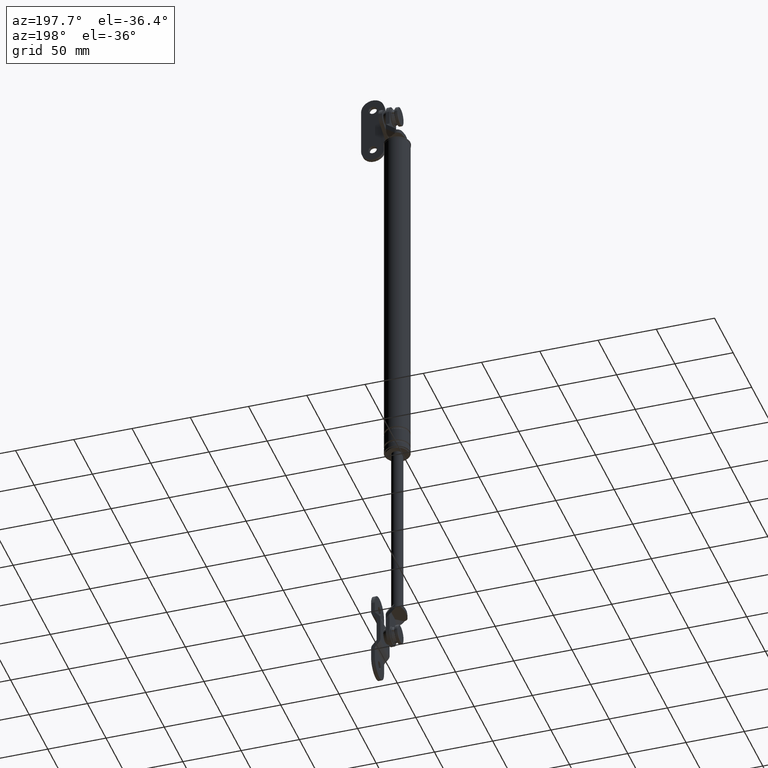
[diagram: clean part render]
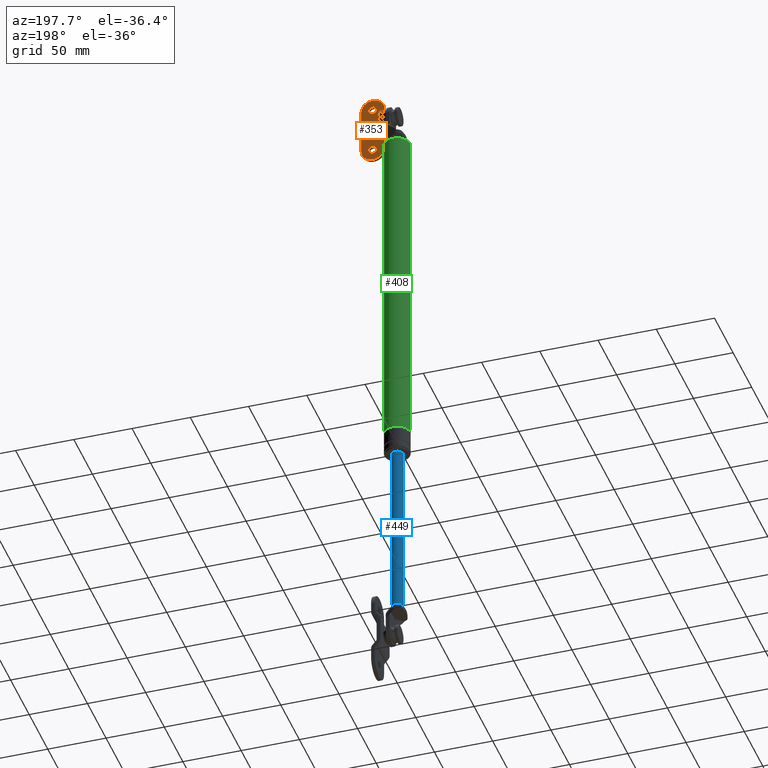
[diagram: same view with three faces highlighted in distinct colors, each labeled with its STEP entity id]
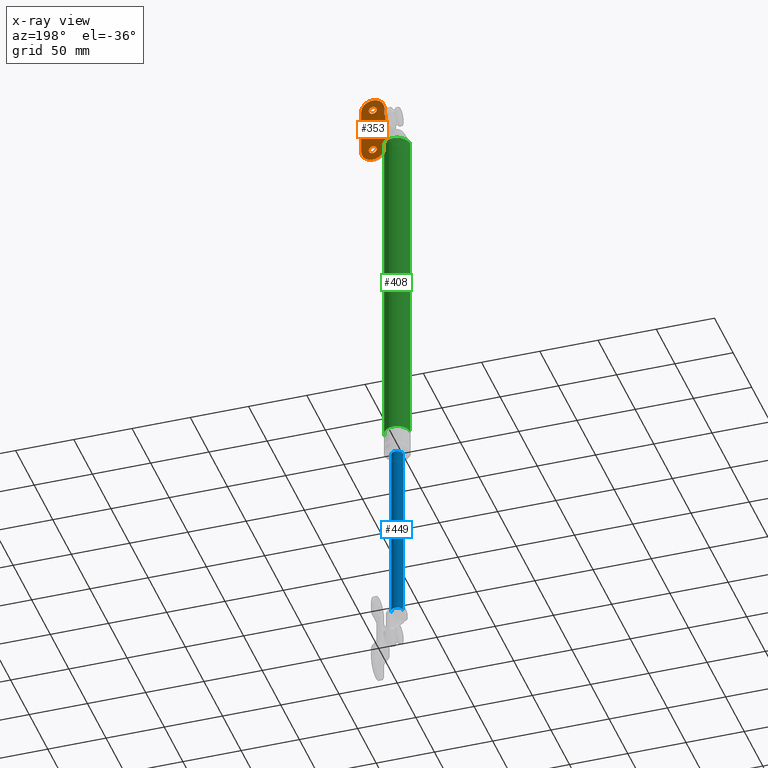
[diagram: x-ray of the same camera — body ghosted, the three highlighted faces saturated]
A machine part, auxiliary view with three faces highlighted in distinct colors.
The next image is the same camera in x-ray (body ghosted, the three faces saturated) — at least one of them is partly hidden behind the body in this view.
Their STEP definitions:

[orange] entity #353 — the highlighted planar face has unit normal (0, -1, 0).
#353=ADVANCED_FACE('',(#1215,#1216,#1217),#1214,.F.);
#1214=PLANE('',#2616);
#1215=FACE_OUTER_BOUND('',#2617,.T.);
#1216=FACE_BOUND('',#2618,.T.);
#1217=FACE_BOUND('',#2619,.T.);
#2613=CARTESIAN_POINT('',(6.63047447386E+001,-2.28800000000E+001,1.87387479342E+002));
#2614=DIRECTION('',(0.00000000000E+000,0.00000000000E+000,1.00000000000E+000));
#2615=DIRECTION('',(1.00000000000E+000,0.00000000000E+000,0.00000000000E+000));
#2616=AXIS2_PLACEMENT_3D('',#2613,#2614,#2615);
#2617=EDGE_LOOP('',(#3814,#3815,#3816,#3817,#3818,#3819,#3820,#3821,#3822,#3823));
#2618=EDGE_LOOP('',(#3824,#3825));
#2619=EDGE_LOOP('',(#3826,#3827));
#3814=ORIENTED_EDGE('',*,*,#4493,.F.);
#3815=ORIENTED_EDGE('',*,*,#4494,.T.);
#3816=ORIENTED_EDGE('',*,*,#4495,.F.);
#3817=ORIENTED_EDGE('',*,*,#4496,.T.);
#3818=ORIENTED_EDGE('',*,*,#4497,.T.);
#3819=ORIENTED_EDGE('',*,*,#4498,.T.);
#3820=ORIENTED_EDGE('',*,*,#4474,.T.);
#3821=ORIENTED_EDGE('',*,*,#4478,.T.);
#3822=ORIENTED_EDGE('',*,*,#4499,.F.);
#3823=ORIENTED_EDGE('',*,*,#4500,.T.);
#3824=ORIENTED_EDGE('',*,*,#4501,.F.);
#3825=ORIENTED_EDGE('',*,*,#4502,.F.);
#3826=ORIENTED_EDGE('',*,*,#4503,.F.);
#3827=ORIENTED_EDGE('',*,*,#4504,.F.);
#4474=EDGE_CURVE('',#5969,#5970,#5971,.T.);
#4478=EDGE_CURVE('',#5970,#5997,#5998,.T.);
#4493=EDGE_CURVE('',#5929,#5949,#6100,.T.);
#4494=EDGE_CURVE('',#5929,#6106,#6107,.T.);
#4495=EDGE_CURVE('',#6113,#6106,#6114,.T.);
#4496=EDGE_CURVE('',#6113,#6120,#6121,.T.);
#4497=EDGE_CURVE('',#6120,#6127,#6128,.T.);
#4498=EDGE_CURVE('',#6127,#5969,#6134,.T.);
#4499=EDGE_CURVE('',#6140,#5997,#6141,.T.);
#4500=EDGE_CURVE('',#6140,#5949,#6147,.T.);
#4501=EDGE_CURVE('',#6153,#6154,#6155,.T.);
#4502=EDGE_CURVE('',#6154,#6153,#6161,.T.);
#4503=EDGE_CURVE('',#6167,#6168,#6169,.T.);
#4504=EDGE_CURVE('',#6168,#6167,#6175,.T.);
#5929=VERTEX_POINT('',#8329);
#5949=VERTEX_POINT('',#8340);
#5969=VERTEX_POINT('',#8351);
#5970=VERTEX_POINT('',#8352);
#5971=CIRCLE('',#8356,1.00000000000E+001);
#5997=VERTEX_POINT('',#8369);
#5998=LINE('',#8370,#8371);
#6100=LINE('',#8434,#8435);
#6106=VERTEX_POINT('',#8437);
#6107=LINE('',#8438,#8439);
#6113=VERTEX_POINT('',#8441);
#6114=CIRCLE('',#8445,5.00000000000E-001);
#6120=VERTEX_POINT('',#8446);
#6121=LINE('',#8447,#8448);
#6127=VERTEX_POINT('',#8450);
#6128=CIRCLE('',#8454,1.00000000000E+001);
#6134=LINE('',#8455,#8456);
#6140=VERTEX_POINT('',#8458);
#6141=CIRCLE('',#8462,5.00000000000E-001);
#6147=LINE('',#8463,#8464);
#6153=VERTEX_POINT('',#8466);
#6154=VERTEX_POINT('',#8467);
#6155=CIRCLE('',#8471,3.50000000000E+000);
#6161=CIRCLE('',#8475,3.50000000000E+000);
#6167=VERTEX_POINT('',#8476);
#6168=VERTEX_POINT('',#8477);
#6169=CIRCLE('',#8481,3.50000000000E+000);
#6175=CIRCLE('',#8485,3.50000000000E+000);
#8329=CARTESIAN_POINT('',(1.15304744739E+002,0.00000000000E+000,1.87387479342E+002));
#8340=CARTESIAN_POINT('',(8.93047447386E+001,0.00000000000E+000,1.87387479342E+002));
#8351=CARTESIAN_POINT('',(8.23047447386E+001,-2.08000000000E+001,1.87387479342E+002));
#8352=CARTESIAN_POINT('',(8.23047447386E+001,-8.00000000000E-001,1.87387479342E+002));
#8353=CARTESIAN_POINT('',(8.23047447386E+001,-1.08000000000E+001,1.87387479342E+002));
#8354=DIRECTION('',(0.00000000000E+000,0.00000000000E+000,-1.00000000000E+000));
#8355=DIRECTION('',(1.83690953073E-016,1.00000000000E+000,0.00000000000E+000));
#8356=AXIS2_PLACEMENT_3D('',#8353,#8354,#8355);
#8369=CARTESIAN_POINT('',(8.88047447386E+001,-8.00000000000E-001,1.87387479342E+002));
#8370=CARTESIAN_POINT('',(8.23047447386E+001,-8.00000000000E-001,1.87387479342E+002));
#8371=VECTOR('',#8372,6.50000000000E+000);
#8372=DIRECTION('',(1.00000000000E+000,0.00000000000E+000,0.00000000000E+000));
#8434=CARTESIAN_POINT('',(1.15304744739E+002,4.26325641456E-014,1.87387479342E+002));
#8435=VECTOR('',#8436,2.60000000000E+001);
#8436=DIRECTION('',(-1.00000000000E+000,0.00000000000E+000,0.00000000000E+000));
#8437=CARTESIAN_POINT('',(1.15304744739E+002,-3.00000000000E-001,1.87387479342E+002));
#8438=CARTESIAN_POINT('',(1.15304744739E+002,0.00000000000E+000,1.87387479342E+002));
#8439=VECTOR('',#8440,3.00000000000E-001);
#8440=DIRECTION('',(0.00000000000E+000,-1.00000000000E+000,0.00000000000E+000));
#8441=CARTESIAN_POINT('',(1.15804744739E+002,-8.00000000000E-001,1.87387479342E+002));
#8442=CARTESIAN_POINT('',(1.15804744739E+002,-3.00000000000E-001,1.87387479342E+002));
#8443=DIRECTION('',(0.00000000000E+000,0.00000000000E+000,-1.00000000000E+000));
#8444=DIRECTION('',(-1.00000000000E+000,-0.00000000000E+000,-0.00000000000E+000));
#8445=AXIS2_PLACEMENT_3D('',#8442,#8443,#8444);
#8446=CARTESIAN_POINT('',(1.22304744739E+002,-8.00000000000E-001,1.87387479342E+002));
#8447=CARTESIAN_POINT('',(1.15804744739E+002,-8.00000000000E-001,1.87387479342E+002));
#8448=VECTOR('',#8449,6.50000000000E+000);
#8449=DIRECTION('',(1.00000000000E+000,0.00000000000E+000,0.00000000000E+000));
#8450=CARTESIAN_POINT('',(1.22304744739E+002,-2.08000000000E+001,1.87387479342E+002));
#8451=CARTESIAN_POINT('',(1.22304744739E+002,-1.08000000000E+001,1.87387479342E+002));
#8452=DIRECTION('',(0.00000000000E+000,0.00000000000E+000,-1.00000000000E+000));
#8453=DIRECTION('',(-1.00000000000E+000,-0.00000000000E+000,-0.00000000000E+000));
#8454=AXIS2_PLACEMENT_3D('',#8451,#8452,#8453);
#8455=CARTESIAN_POINT('',(1.22304744739E+002,-2.08000000000E+001,1.87387479342E+002));
#8456=VECTOR('',#8457,4.00000000000E+001);
#8457=DIRECTION('',(-1.00000000000E+000,2.22044604925E-015,0.00000000000E+000));
#8458=CARTESIAN_POINT('',(8.93047447386E+001,-3.00000000000E-001,1.87387479342E+002));
#8459=CARTESIAN_POINT('',(8.88047447386E+001,-3.00000000000E-001,1.87387479342E+002));
#8460=DIRECTION('',(0.00000000000E+000,0.00000000000E+000,-1.00000000000E+000));
#8461=DIRECTION('',(-1.00000000000E+000,-0.00000000000E+000,-0.00000000000E+000));
#8462=AXIS2_PLACEMENT_3D('',#8459,#8460,#8461);
#8463=CARTESIAN_POINT('',(8.93047447386E+001,-3.00000000000E-001,1.87387479342E+002));
#8464=VECTOR('',#8465,3.00000000000E-001);
#8465=DIRECTION('',(0.00000000000E+000,1.00000000000E+000,0.00000000000E+000));
#8466=CARTESIAN_POINT('',(7.88047447386E+001,-1.08000000000E+001,1.87387479342E+002));
#8467=CARTESIAN_POINT('',(8.58047447386E+001,-1.08000000000E+001,1.87387479342E+002));
#8468=CARTESIAN_POINT('',(8.23047447386E+001,-1.08000000000E+001,1.87387479342E+002));
#8469=DIRECTION('',(0.00000000000E+000,-0.00000000000E+000,-1.00000000000E+000));
#8470=DIRECTION('',(1.00000000000E+000,-1.22460635382E-016,0.00000000000E+000));
#8471=AXIS2_PLACEMENT_3D('',#8468,#8469,#8470);
#8472=CARTESIAN_POINT('',(8.23047447386E+001,-1.08000000000E+001,1.87387479342E+002));
#8473=DIRECTION('',(0.00000000000E+000,-0.00000000000E+000,-1.00000000000E+000));
#8474=DIRECTION('',(1.00000000000E+000,-1.22460635382E-016,0.00000000000E+000));
#8475=AXIS2_PLACEMENT_3D('',#8472,#8473,#8474);
#8476=CARTESIAN_POINT('',(1.18804744739E+002,-1.08000000000E+001,1.87387479342E+002));
#8477=CARTESIAN_POINT('',(1.25804744739E+002,-1.08000000000E+001,1.87387479342E+002));
#8478=CARTESIAN_POINT('',(1.22304744739E+002,-1.08000000000E+001,1.87387479342E+002));
#8479=DIRECTION('',(0.00000000000E+000,-0.00000000000E+000,-1.00000000000E+000));
#8480=DIRECTION('',(1.00000000000E+000,-1.22460635382E-016,0.00000000000E+000));
#8481=AXIS2_PLACEMENT_3D('',#8478,#8479,#8480);
#8482=CARTESIAN_POINT('',(1.22304744739E+002,-1.08000000000E+001,1.87387479342E+002));
#8483=DIRECTION('',(0.00000000000E+000,-0.00000000000E+000,-1.00000000000E+000));
#8484=DIRECTION('',(1.00000000000E+000,-1.22460635382E-016,0.00000000000E+000));
#8485=AXIS2_PLACEMENT_3D('',#8482,#8483,#8484);

[blue] entity #449 — the highlighted cylindrical surface (edge-blend (fillet) strip) has radius 5 mm, axis along (0, 0, 1).
#449=ADVANCED_FACE('',(#2186),#2185,.T.);
#2185=CYLINDRICAL_SURFACE('',#3417,5.00000002618E+000);
#2186=FACE_OUTER_BOUND('',#3418,.T.);
#3414=CARTESIAN_POINT('',(0.00000000000E+000,-2.61800128243E-008,0.00000000000E+000));
#3415=DIRECTION('',(-0.00000000000E+000,-0.00000000000E+000,1.00000000000E+000));
#3416=DIRECTION('',(1.00000000000E+000,0.00000000000E+000,0.00000000000E+000));
#3417=AXIS2_PLACEMENT_3D('',#3414,#3415,#3416);
#3418=EDGE_LOOP('',(#4276,#4277,#4278,#4279,#4280));
#4276=ORIENTED_EDGE('',*,*,#4711,.T.);
#4277=ORIENTED_EDGE('',*,*,#4715,.F.);
#4278=ORIENTED_EDGE('',*,*,#4699,.F.);
#4279=ORIENTED_EDGE('',*,*,#4703,.F.);
#4280=ORIENTED_EDGE('',*,*,#4716,.T.);
#4699=EDGE_CURVE('',#7115,#7465,#7466,.T.);
#4703=EDGE_CURVE('',#7484,#7115,#7491,.T.);
#4711=EDGE_CURVE('',#7536,#7535,#7543,.T.);
#4715=EDGE_CURVE('',#7465,#7535,#7567,.T.);
#4716=EDGE_CURVE('',#7484,#7536,#7573,.T.);
#7115=VERTEX_POINT('',#9052);
#7465=VERTEX_POINT('',#9260);
#7466=CIRCLE('',#9264,5.00000000000E+000);
#7484=VERTEX_POINT('',#9272);
#7491=CIRCLE('',#9280,5.00000000000E+000);
#7535=VERTEX_POINT('',#9304);
#7536=VERTEX_POINT('',#9305);
#7543=CIRCLE('',#9313,5.00000002618E+000);
#7567=(BOUNDED_CURVE() B_SPLINE_CURVE(1,(#9322,#9323),.UNSPECIFIED.,.F.,.F.) B_SPLINE_CURVE_WITH_KNOTS((2,2),(5.58659216388E-002,9.44134078355E-001),.UNSPECIFIED.) CURVE() GEOMETRIC_REPRESENTATION_ITEM() RATIONAL_B_SPLINE_CURVE((1.00000000000E+000,1.00000000000E+000)) REPRESENTATION_ITEM('') );
#7573=(BOUNDED_CURVE() B_SPLINE_CURVE(1,(#9324,#9325),.UNSPECIFIED.,.F.,.F.) B_SPLINE_CURVE_WITH_KNOTS((2,2),(5.58659217877E-002,9.44134078212E-001),.UNSPECIFIED.) CURVE() GEOMETRIC_REPRESENTATION_ITEM() RATIONAL_B_SPLINE_CURVE((7.50000000000E-001,7.50000000000E-001)) REPRESENTATION_ITEM('') );
#9052=CARTESIAN_POINT('',(2.00000000000E+000,4.58257569496E+000,-3.89000015000E+002));
#9260=CARTESIAN_POINT('',(5.00000000000E+000,-2.61900324487E-008,-3.89000015000E+002));
#9261=CARTESIAN_POINT('',(0.00000000000E+000,-8.79296635503E-014,-3.89000015000E+002));
#9262=DIRECTION('',(0.00000000000E+000,0.00000000000E+000,-1.00000000000E+000));
#9263=DIRECTION('',(4.00000000000E-001,9.16515138991E-001,0.00000000000E+000));
#9264=AXIS2_PLACEMENT_3D('',#9261,#9262,#9263);
#9272=CARTESIAN_POINT('',(-5.00000000000E+000,9.05907474325E-007,-3.89000015000E+002));
#9277=CARTESIAN_POINT('',(0.00000000000E+000,-8.79296635503E-014,-3.89000015000E+002));
#9278=DIRECTION('',(0.00000000000E+000,0.00000000000E+000,-1.00000000000E+000));
#9279=DIRECTION('',(1.00000000000E+000,-0.00000000000E+000,-0.00000000000E+000));
#9280=AXIS2_PLACEMENT_3D('',#9277,#9278,#9279);
#9304=CARTESIAN_POINT('',(5.00000002618E+000,-2.61800125282E-008,-2.30000015000E+002));
#9305=CARTESIAN_POINT('',(-5.00000002618E+000,-2.61800128243E-008,-2.30000015000E+002));
#9310=CARTESIAN_POINT('',(0.00000000000E+000,-2.61800128243E-008,-2.30000015000E+002));
#9311=DIRECTION('',(-0.00000000000E+000,0.00000000000E+000,-1.00000000000E+000));
#9312=DIRECTION('',(-1.00000000000E+000,-1.22460635382E-016,0.00000000000E+000));
#9313=AXIS2_PLACEMENT_3D('',#9310,#9311,#9312);
#9322=CARTESIAN_POINT('',(5.00000002618E+000,-2.61800128243E-008,-3.89000015027E+002));
#9323=CARTESIAN_POINT('',(5.00000002618E+000,-2.61800128243E-008,-2.30000014975E+002));
#9324=CARTESIAN_POINT('',(-5.00000002618E+000,-2.61800131203E-008,-3.89000015000E+002));
#9325=CARTESIAN_POINT('',(-5.00000002618E+000,-2.61800131203E-008,-2.30000015000E+002));

[green] entity #408 — the highlighted cylindrical surface (edge-blend (fillet) strip) has radius 11 mm, axis along (0, 0, 1).
#408=ADVANCED_FACE('',(#1774),#1773,.T.);
#1773=CYLINDRICAL_SURFACE('',#3064,1.09999999738E+001);
#1774=FACE_OUTER_BOUND('',#3065,.T.);
#3061=CARTESIAN_POINT('',(-2.61800288115E-008,0.00000000000E+000,0.00000000000E+000));
#3062=DIRECTION('',(-0.00000000000E+000,-0.00000000000E+000,1.00000000000E+000));
#3063=DIRECTION('',(1.00000000000E+000,-0.00000000000E+000,-0.00000000000E+000));
#3064=AXIS2_PLACEMENT_3D('',#3061,#3062,#3063);
#3065=EDGE_LOOP('',(#4078,#4079,#4080,#4081));
#4078=ORIENTED_EDGE('',*,*,#4611,.F.);
#4079=ORIENTED_EDGE('',*,*,#4620,.F.);
#4080=ORIENTED_EDGE('',*,*,#4621,.F.);
#4081=ORIENTED_EDGE('',*,*,#4622,.T.);
#4611=EDGE_CURVE('',#6874,#6873,#6881,.T.);
#4620=EDGE_CURVE('',#6941,#6874,#6942,.T.);
#4621=EDGE_CURVE('',#6948,#6941,#6949,.T.);
#4622=EDGE_CURVE('',#6948,#6873,#6955,.T.);
#6873=VERTEX_POINT('',#8909);
#6874=VERTEX_POINT('',#8910);
#6881=CIRCLE('',#8918,1.09999999738E+001);
#6941=VERTEX_POINT('',#8953);
#6942=(BOUNDED_CURVE() B_SPLINE_CURVE(1,(#8954,#8955),.UNSPECIFIED.,.F.,.F.) B_SPLINE_CURVE_WITH_KNOTS((2,2),(3.19590923380E-002,9.68040907676E-001),.UNSPECIFIED.) CURVE() GEOMETRIC_REPRESENTATION_ITEM() RATIONAL_B_SPLINE_CURVE((1.00000000000E+000,1.00000000000E+000)) REPRESENTATION_ITEM('') );
#6948=VERTEX_POINT('',#8956);
#6949=CIRCLE('',#8960,1.10000000524E+001);
#6955=(BOUNDED_CURVE() B_SPLINE_CURVE(1,(#8961,#8962),.UNSPECIFIED.,.F.,.F.) B_SPLINE_CURVE_WITH_KNOTS((2,2),(3.19590923618E-002,9.68040907638E-001),.UNSPECIFIED.) CURVE() GEOMETRIC_REPRESENTATION_ITEM() RATIONAL_B_SPLINE_CURVE((7.50000000000E-001,7.50000000000E-001)) REPRESENTATION_ITEM('') );
#8909=CARTESIAN_POINT('',(-1.10000000000E+001,0.00000000000E+000,8.38999850000E+001));
#8910=CARTESIAN_POINT('',(1.09999999476E+001,1.18423789293E-015,8.38999850000E+001));
#8915=CARTESIAN_POINT('',(-2.61800288115E-008,0.00000000000E+000,8.38999850000E+001));
#8916=DIRECTION('',(0.00000000000E+000,0.00000000000E+000,1.00000000000E+000));
#8917=DIRECTION('',(-1.00000000000E+000,-1.22460635382E-016,0.00000000000E+000));
#8918=AXIS2_PLACEMENT_3D('',#8915,#8916,#8917);
#8953=CARTESIAN_POINT('',(1.10000000524E+001,-8.64493661841E-014,-2.09000015000E+002));
#8954=CARTESIAN_POINT('',(1.09999999476E+001,0.00000000000E+000,-2.09000015007E+002));
#8955=CARTESIAN_POINT('',(1.09999999476E+001,0.00000000000E+000,8.38999850118E+001));
#8956=CARTESIAN_POINT('',(-1.10000000524E+001,-8.79296635503E-014,-2.09000015000E+002));
#8957=CARTESIAN_POINT('',(0.00000000000E+000,-8.79296635503E-014,-2.09000015000E+002));
#8958=DIRECTION('',(-0.00000000000E+000,0.00000000000E+000,-1.00000000000E+000));
#8959=DIRECTION('',(-1.00000000000E+000,-1.22460635382E-016,0.00000000000E+000));
#8960=AXIS2_PLACEMENT_3D('',#8957,#8958,#8959);
#8961=CARTESIAN_POINT('',(-1.10000000000E+001,0.00000000000E+000,-2.09000015000E+002));
#8962=CARTESIAN_POINT('',(-1.10000000000E+001,0.00000000000E+000,8.38999850000E+001));